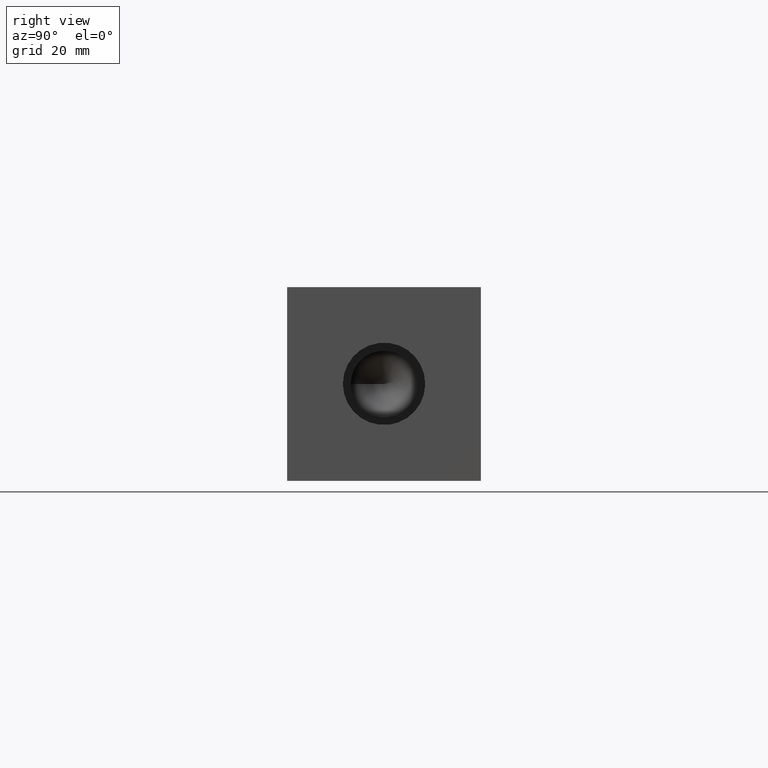
[diagram: clean part render]
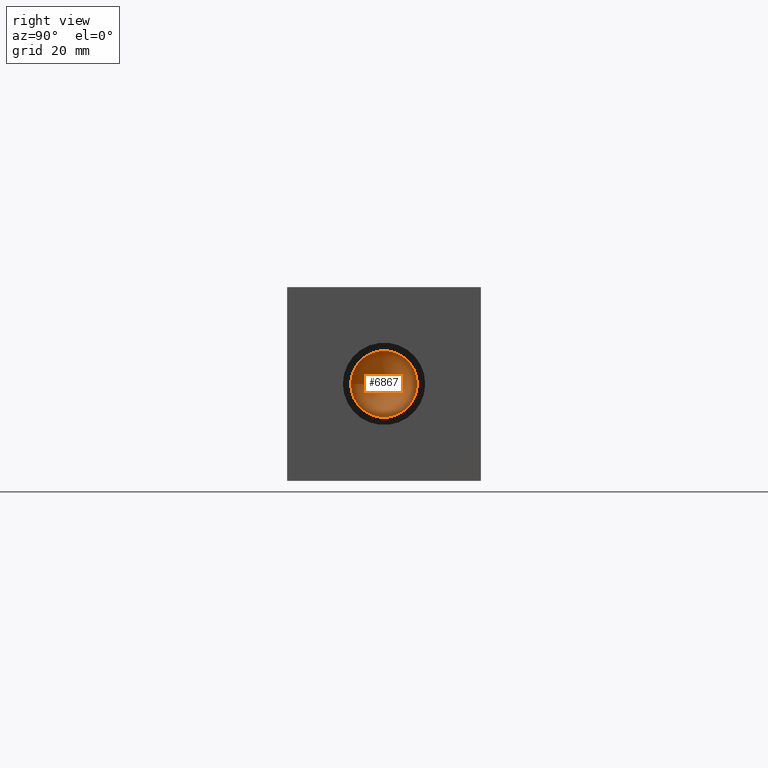
[diagram: same view with one face highlighted and labeled with its STEP entity id]
A machine part, right view. The second image highlights one B-rep face of the part: STEP entity #6867.
In plain terms, the highlighted conical surface has half-angle 60 deg.
Its self-contained STEP definition (entity closure, byte-faithful):
#17=CONICAL_SURFACE('',#7156,4.3688,1.0471975511966);
#78=CIRCLE('',#7157,8.7376);
#79=CIRCLE('',#7158,8.7376);
#684=FACE_OUTER_BOUND('',#1069,.T.);
#1069=EDGE_LOOP('',(#6043,#6044,#6045,#6046));
#1741=LINE('',#11779,#2403);
#2403=VECTOR('',#8360,4.3688);
#3259=VERTEX_POINT('',#11775);
#3260=VERTEX_POINT('',#11776);
#3261=VERTEX_POINT('',#11778);
#4196=EDGE_CURVE('',#3259,#3260,#78,.T.);
#4197=EDGE_CURVE('',#3260,#3261,#1741,.T.);
#4198=EDGE_CURVE('',#3260,#3259,#79,.T.);
#6043=ORIENTED_EDGE('',*,*,#4196,.T.);
#6044=ORIENTED_EDGE('',*,*,#4197,.T.);
#6045=ORIENTED_EDGE('',*,*,#4197,.F.);
#6046=ORIENTED_EDGE('',*,*,#4198,.T.);
#6867=ADVANCED_FACE('',(#684),#17,.F.);
#7156=AXIS2_PLACEMENT_3D('',#11774,#8356,#8357);
#7157=AXIS2_PLACEMENT_3D('',#11777,#8358,#8359);
#7158=AXIS2_PLACEMENT_3D('',#11780,#8361,#8362);
#8356=DIRECTION('center_axis',(1.,0.,0.));
#8357=DIRECTION('ref_axis',(0.,1.,0.));
#8358=DIRECTION('center_axis',(1.,0.,0.));
#8359=DIRECTION('ref_axis',(0.,1.,0.));
#8360=DIRECTION('',(-0.5,0.866025403784439,1.06057523872491E-16));
#8361=DIRECTION('center_axis',(1.,0.,0.));
#8362=DIRECTION('ref_axis',(0.,1.,0.));
#11774=CARTESIAN_POINT('Origin',(159.406202143964,25.4,25.4));
#11775=CARTESIAN_POINT('',(161.92853,34.1376,25.4));
#11776=CARTESIAN_POINT('',(161.92853,16.6624,25.4));
#11777=CARTESIAN_POINT('Origin',(161.92853,25.4,25.4));
#11778=CARTESIAN_POINT('',(156.883874287929,25.4,25.4));
#11779=CARTESIAN_POINT('',(159.406202143964,21.0312,25.4));
#11780=CARTESIAN_POINT('Origin',(161.92853,25.4,25.4));